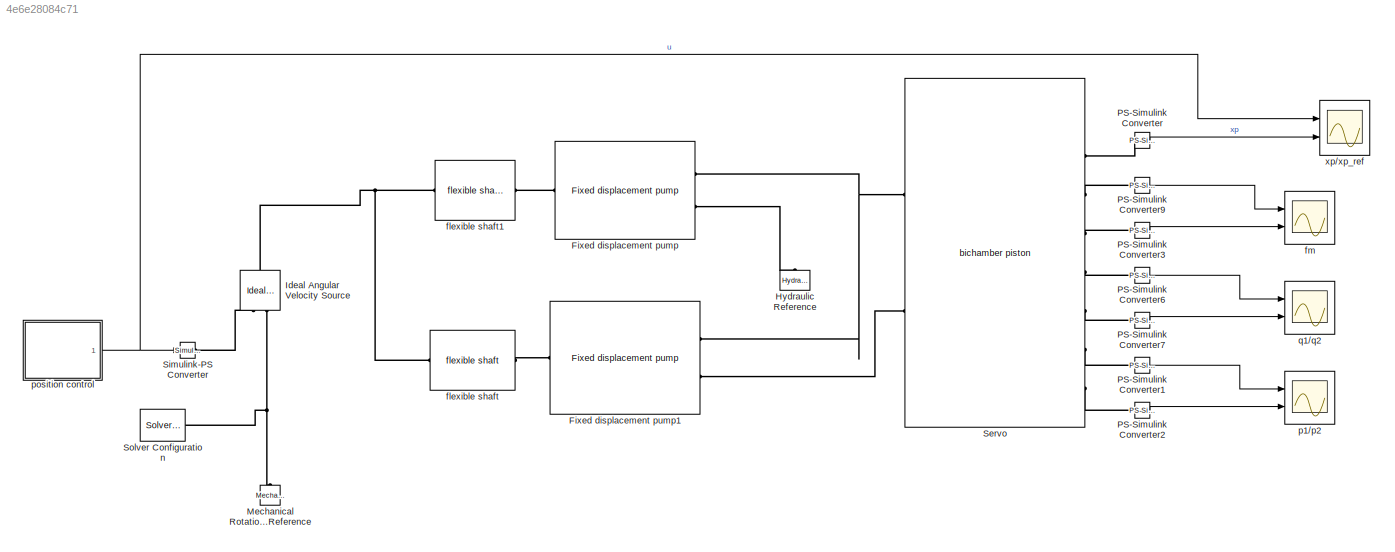
MODEL slx_4e6e28084c71
KIND model
CONFIG AbsTol = auto
CONFIG EnableMultiTasking = off
CONFIG FixedStep = auto
CONFIG MaxStep = tsample
CONFIG MinStep = auto
CONFIG RelTol = auto
CONFIG SampleTimeConstraint = Unconstrained
CONFIG Solver = daessc
CONFIG SolverName = daessc
CONFIG StartTime = 0.0
CONFIG StopTime = 20
BLOCK [Reference] Fixed displacement pump  REF=fixed_displacement_pump_lib/Fixed displacement
pump
  Ports = [0, 0, 0, 0, 0, 1, 2]
  SourceBlock = fixed_displacement_pump_lib/Fixed displacement\npump
  SourceType = Fixed displacement\npump
BLOCK [Reference] Fixed displacement pump1  REF=fixed_displacement_pump_lib/Fixed displacement
pump
  Ports = [0, 0, 0, 0, 0, 1, 2]
  SourceBlock = fixed_displacement_pump_lib/Fixed displacement\npump
  SourceType = Fixed displacement\npump
BLOCK [Reference] Hydraulic Reference  REF=fl_lib/Hydraulic/Hydraulic Elements/Hydraulic Reference
  NameLocation = right
  Ports = [0, 0, 0, 0, 0, 1]
  SourceBlock = fl_lib/Hydraulic/Hydraulic Elements/Hydraulic Reference
  SourceProductBaseCode = SS
  SourceType = Hydraulic Reference
BLOCK [Reference] Ideal Angular Velocity Source  REF=fl_lib/Mechanical/Mechanical Sources/Ideal Angular
Velocity Source
  NameLocation = right
  Ports = [0, 0, 0, 0, 0, 1, 2]
  SourceBlock = fl_lib/Mechanical/Mechanical Sources/Ideal Angular\nVelocity Source
  SourceProductBaseCode = SS
  SourceType = Ideal Angular\nVelocity Source
BLOCK [Reference] Mechanical Rotational Reference  REF=fl_lib/Mechanical/Rotational Elements/Mechanical
Rotational Reference
  NameLocation = right
  Ports = [0, 0, 0, 0, 0, 1]
  SourceBlock = fl_lib/Mechanical/Rotational Elements/Mechanical\nRotational Reference
  SourceProductBaseCode = SS
  SourceType = Mechanical\nRotational Reference
BLOCK [Reference] PS-Simulink Converter  REF=nesl_utility/PS-Simulink
Converter
  Ports = [0, 1, 0, 0, 0, 1]
  SourceBlock = nesl_utility/PS-Simulink\nConverter
  SourceProductBaseCode = SS
  SourceType = PS-Simulink\nConverter
BLOCK [Reference] PS-Simulink Converter1  REF=nesl_utility/PS-Simulink
Converter
  Ports = [0, 1, 0, 0, 0, 1]
  SourceBlock = nesl_utility/PS-Simulink\nConverter
  SourceProductBaseCode = SS
  SourceType = PS-Simulink\nConverter
BLOCK [Reference] PS-Simulink Converter2  REF=nesl_utility/PS-Simulink
Converter
  Ports = [0, 1, 0, 0, 0, 1]
  SourceBlock = nesl_utility/PS-Simulink\nConverter
  SourceProductBaseCode = SS
  SourceType = PS-Simulink\nConverter
BLOCK [Reference] PS-Simulink Converter3  REF=nesl_utility/PS-Simulink
Converter
  Ports = [0, 1, 0, 0, 0, 1]
  SourceBlock = nesl_utility/PS-Simulink\nConverter
  SourceProductBaseCode = SS
  SourceType = PS-Simulink\nConverter
BLOCK [Reference] PS-Simulink Converter6  REF=nesl_utility/PS-Simulink
Converter
  Ports = [0, 1, 0, 0, 0, 1]
  SourceBlock = nesl_utility/PS-Simulink\nConverter
  SourceProductBaseCode = SS
  SourceType = PS-Simulink\nConverter
BLOCK [Reference] PS-Simulink Converter7  REF=nesl_utility/PS-Simulink
Converter
  Ports = [0, 1, 0, 0, 0, 1]
  SourceBlock = nesl_utility/PS-Simulink\nConverter
  SourceProductBaseCode = SS
  SourceType = PS-Simulink\nConverter
BLOCK [Reference] PS-Simulink Converter9  REF=nesl_utility/PS-Simulink
Converter
  Ports = [0, 1, 0, 0, 0, 1]
  SourceBlock = nesl_utility/PS-Simulink\nConverter
  SourceProductBaseCode = SS
  SourceType = PS-Simulink\nConverter
BLOCK [Reference] Servo  REF=bichamber_piston_lib/bichamber piston
  Ports = [0, 0, 0, 0, 0, 2, 8]
  SourceBlock = bichamber_piston_lib/bichamber piston
  SourceType = bichamber piston
BLOCK [Reference] Simulink-PS Converter  REF=nesl_utility/Simulink-PS
Converter
  Ports = [1, 0, 0, 0, 0, 0, 1]
  SourceBlock = nesl_utility/Simulink-PS\nConverter
  SourceProductBaseCode = SS
  SourceType = Simulink-PS\nConverter
BLOCK [Reference] Solver Configuration  REF=nesl_utility/Solver
Configuration
  Ports = [0, 0, 0, 0, 0, 0, 1]
  SourceBlock = nesl_utility/Solver\nConfiguration
  SourceProductBaseCode = SS
  SourceType = Solver\nConfiguration
BLOCK [Reference] flexible shaft  REF=flexshaft_lib/flexible shaft
  Ports = [0, 0, 0, 0, 0, 1, 1]
  SourceBlock = flexshaft_lib/flexible shaft
  SourceType = flexible shaft
BLOCK [Reference] flexible shaft1  REF=flexshaft_lib/flexible shaft
  Ports = [0, 0, 0, 0, 0, 1, 1]
  SourceBlock = flexshaft_lib/flexible shaft
  SourceType = flexible shaft
BLOCK [Scope] fm
  Floating = off
  NumInputPorts = 2
  Ports = [2]
  ScopeSpecificationString = Simulink.scopes.TimeScopeBlockCfg('CurrentConfiguration', extmgr.ConfigurationSet(extmgr.Configuration('Core','General UI',true),extmgr.Configuration('Core','Source UI',true),extmgr.Configuration('Sources','WiredSimulink',true,'SampleTime','tsample','DataLoggingVariableName','ScopeData4'),extmgr.Configuration('Visuals','Time Domain',true,'SerializedDisplays',{struct('MinYLimReal','-0.12639','MaxYL...<+2364ch>
BLOCK [Scope] p1//p2
  Floating = off
  NumInputPorts = 2
  Ports = [2]
  ScopeSpecificationString = Simulink.scopes.TimeScopeBlockCfg('CurrentConfiguration', extmgr.ConfigurationSet(extmgr.Configuration('Core','General UI',true),extmgr.Configuration('Core','Source UI',true),extmgr.Configuration('Sources','WiredSimulink',true,'SampleTime','tsample','DataLoggingVariableName','ScopeData3'),extmgr.Configuration('Visuals','Time Domain',true,'SerializedDisplays',{struct('MinYLimReal','-1151838.10909',...<+1812ch>
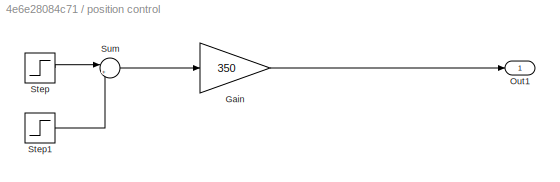
BLOCK [SubSystem] position control
  Ports = [0, 1]
  RequestExecContextInheritance = off
BLOCK [Gain] position control/Gain
  Gain = 350
BLOCK [Outport] position control/Out1
BLOCK [Step] position control/Step
  SampleTime = 0
  Time = 5
BLOCK [Step] position control/Step1
  After = -1
  SampleTime = 0
  Time = 10
BLOCK [Sum] position control/Sum
  Inputs = |++
  Ports = [2, 1]
BLOCK [Scope] q1//q2
  Floating = off
  NumInputPorts = 2
  Ports = [2]
  ScopeSpecificationString = Simulink.scopes.TimeScopeBlockCfg('CurrentConfiguration', extmgr.ConfigurationSet(extmgr.Configuration('Core','General UI',true),extmgr.Configuration('Core','Source UI',true),extmgr.Configuration('Sources','WiredSimulink',true,'SampleTime','tsample','DataLoggingVariableName','ScopeData3'),extmgr.Configuration('Visuals','Time Domain',true,'SerializedDisplays',{struct('MinYLimReal','-0.00155','MaxYL...<+1760ch>
BLOCK [Scope] xp//xp_ref
  Floating = off
  NumInputPorts = 2
  Ports = [2]
  ScopeSpecificationString = Simulink.scopes.TimeScopeBlockCfg('CurrentConfiguration', extmgr.ConfigurationSet(extmgr.Configuration('Core','General UI',true),extmgr.Configuration('Core','Source UI',true),extmgr.Configuration('Sources','WiredSimulink',true,'SampleTime','tsample','DataLoggingVariableName','ScopeData2'),extmgr.Configuration('Visuals','Time Domain',true,'SerializedDisplays',{struct('MinYLimReal','-43.75','MaxYLim...<+2310ch>
LINE PS-Simulink Converter1:1 -> p1//p2:1
LINE PS-Simulink Converter2:1 -> p1//p2:2
LINE PS-Simulink Converter3:1 -> fm:2
LINE PS-Simulink Converter6:1 -> q1//q2:1
LINE PS-Simulink Converter7:1 -> q1//q2:2
LINE PS-Simulink Converter9:1 -> fm:1
LINE PS-Simulink Converter:1 -> xp//xp_ref:2
LINE position control/Gain:1 -> position control/Out1:1
LINE position control/Step1:1 -> position control/Sum:2
LINE position control/Step:1 -> position control/Sum:1
LINE position control/Sum:1 -> position control/Gain:1
NET position control:1 -> Simulink-PS Converter:1, xp//xp_ref:1
PLINE Fixed displacement pump1:LConn1 -- flexible shaft:RConn1
PNET net1: Fixed displacement pump1:RConn1 -- Fixed displacement pump:RConn1 -- Servo:LConn1
PLINE Fixed displacement pump1:RConn2 -- Servo:LConn2
PLINE Fixed displacement pump:LConn1 -- flexible shaft1:RConn1
PLINE Fixed displacement pump:RConn2 -- Hydraulic Reference:LConn1
PNET net2: Ideal Angular Velocity Source:LConn1 -- flexible shaft1:LConn1 -- flexible shaft:LConn1
PLINE Ideal Angular Velocity Source:RConn1 -- Simulink-PS Converter:RConn1
PNET net3: Ideal Angular Velocity Source:RConn2 -- Mechanical Rotational Reference:LConn1 -- Solver Configuration:RConn1
PLINE PS-Simulink Converter1:LConn1 -- Servo:RConn7
PLINE PS-Simulink Converter2:LConn1 -- Servo:RConn8
PLINE PS-Simulink Converter3:LConn1 -- Servo:RConn4
PLINE PS-Simulink Converter6:LConn1 -- Servo:RConn5
PLINE PS-Simulink Converter7:LConn1 -- Servo:RConn6
PLINE PS-Simulink Converter9:LConn1 -- Servo:RConn3
PLINE PS-Simulink Converter:LConn1 -- Servo:RConn2
note: NET lines group one-source signal fan-out (src -> all destinations, sorted); 1:1 wires keep LINE; PNET lines group multi-terminal physical nets as a canonical sorted terminal list (undirected conserving connections); 2-terminal nets keep the pairwise PLINE form
